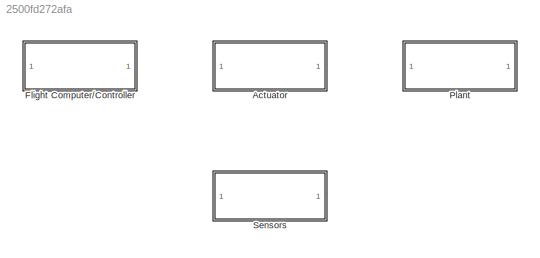
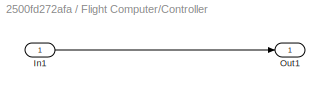
MODEL slx_2500fd272afa
KIND model
CONFIG AbsTol = auto
CONFIG EnableMultiTasking = off
CONFIG FixedStep = auto
CONFIG MaxStep = auto
CONFIG MinStep = auto
CONFIG RelTol = 1e-3
CONFIG SampleTimeConstraint = Unconstrained
CONFIG SolverName = VariableStepAuto
CONFIG StartTime = 0.0
CONFIG StopTime = 30
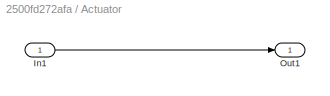
BLOCK [SubSystem] Actuator
BLOCK [Inport] Actuator/In1
BLOCK [Outport] Actuator/Out1
BLOCK [SubSystem] Flight Computer//Controller
BLOCK [Inport] Flight Computer//Controller/In1
BLOCK [Outport] Flight Computer//Controller/Out1
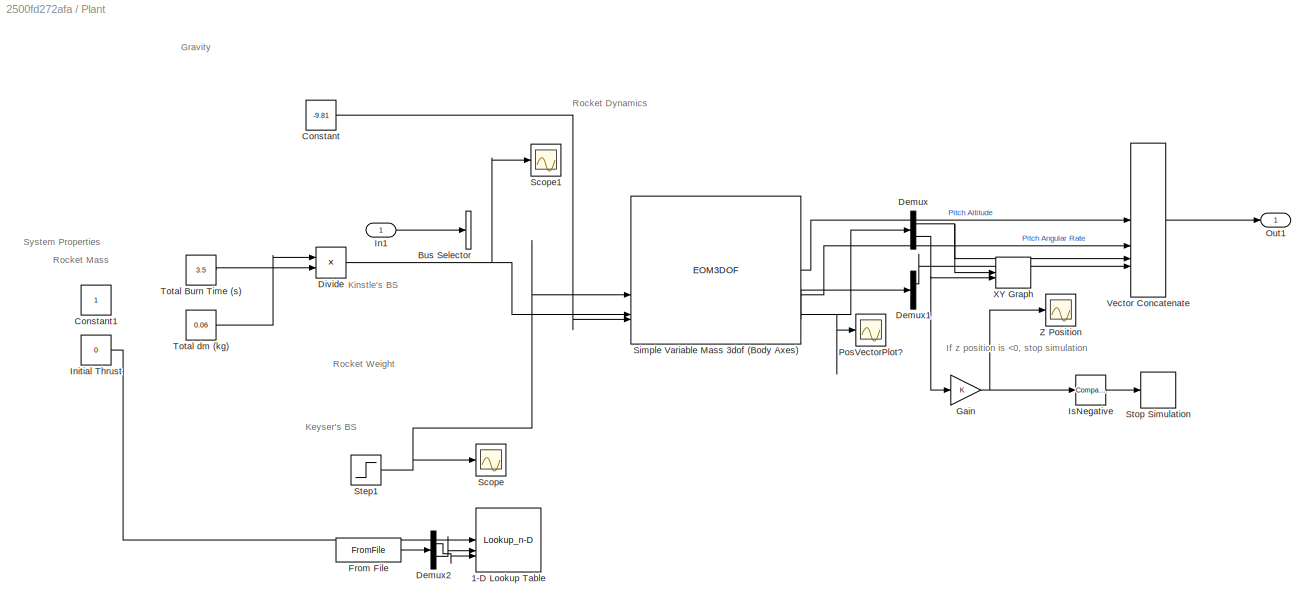
BLOCK [SubSystem] Plant
BLOCK [Lookup_n-D] Plant/1-D Lookup Table
  BreakpointsForDimension1 = [-5:5]
  BreakpointsForDimension1Source = Input port
  InputPortMap = u0,p221,p5
  InternalRulePriority = Speed
  NumberOfTableDimensions = 1
  RndMeth = Simplest
  Table = tanh([-5:5])
  TableSource = Input port
BLOCK [BusSelector] Plant/Bus Selector
  Commented = on
  OutputSignals = signal1,signal2
BLOCK [Constant] Plant/Constant
  Value = -9.81
BLOCK [Constant] Plant/Constant1
BLOCK [Demux] Plant/Demux
  Outputs = 2
BLOCK [Demux] Plant/Demux1
  Outputs = 2
BLOCK [Demux] Plant/Demux2
  Outputs = 2
BLOCK [Product] Plant/Divide
  Inputs = */
  OutDataTypeStr = double
BLOCK [FromFile] Plant/From File
  FileName = F15_thrust.mat
  SampleTime = 0
BLOCK [Gain] Plant/Gain
BLOCK [Inport] Plant/In1
BLOCK [Constant] Plant/Initial Thrust
  Value = 0
BLOCK [Reference] Plant/IsNegative  REF=simulink/Logic and Bit
Operations/Compare
To Zero
  LibrarySourceBlock = simulink/Quick Insert/Logic and Bit\nOperations/IsNegative
  SourceBlock = simulink/Logic and Bit\nOperations/Compare\nTo Zero
  SourceType = Compare To Zero
BLOCK [Outport] Plant/Out1
BLOCK [Scope] Plant/PosVectorPlot?
  Floating = off
  NumInputPorts = 1
  ScopeSpecificationString = Simulink.scopes.TimeScopeBlockCfg('CurrentConfiguration', extmgr.ConfigurationSet(extmgr.Configuration('Core','General UI',true),extmgr.Configuration('Core','Source UI',true),extmgr.Configuration('Sources','WiredSimulink',true,'DataLoggingVariableName','ScopeData1'),extmgr.Configuration('Visuals','Time Domain',true,'SerializedDisplays',{struct('MinYLimReal','177.43815','MaxYLimReal','193.29129','Y...<+1647ch>
BLOCK [Scope] Plant/Scope
  Floating = off
  NumInputPorts = 1
  ScopeSpecificationString = Simulink.scopes.TimeScopeBlockCfg('CurrentConfiguration', extmgr.ConfigurationSet(extmgr.Configuration('Core','General UI',true),extmgr.Configuration('Core','Source UI',true),extmgr.Configuration('Sources','WiredSimulink',true),extmgr.Configuration('Visuals','Time Domain',true,'SerializedDisplays',{struct('MinYLimReal','-2.25','MaxYLimReal','20.25','YLabelReal','','MinYLimMag','0.00000','MaxYLimMa...<+1442ch>
BLOCK [Scope] Plant/Scope1
  Floating = off
  NumInputPorts = 1
  ScopeSpecificationString = Simulink.scopes.TimeScopeBlockCfg('CurrentConfiguration', extmgr.ConfigurationSet(extmgr.Configuration('Core','General UI',true),extmgr.Configuration('Core','Source UI',true),extmgr.Configuration('Sources','WiredSimulink',true,'DataLoggingVariableName','ScopeData1'),extmgr.Configuration('Visuals','Time Domain',true,'SerializedDisplays',{struct('MinYLimReal','0.00714','MaxYLimReal','0.02714','YLabe...<+1555ch>
BLOCK [EOM3DOF] Plant/Simple Variable Mass 3dof (Body Axes)
  g_in = External
  mtype = Simple Variable
BLOCK [Step] Plant/Step1
  After = 0
  Before = 18
  SampleTime = 0
  Time = 5
BLOCK [Stop] Plant/Stop Simulation
BLOCK [Constant] Plant/Total Burn Time (s)
  Value = 3.5
BLOCK [Constant] Plant/Total dm (kg)
  Value = 0.06
BLOCK [Concatenate] Plant/Vector Concatenate
  NumInputs = 5
BLOCK [Record] Plant/XY Graph
  CompatibilityTag = XY
  FileSettingsInternal = {"entries":[{"content":{"excelSettings":{"content":{},"type":"Streamout.ExcelSettings"}},"type":"Streamout.FileSettingStorage","uuid":""}],"packageUris":["http:\/\/schema.mathworks.com\/mf0\/streamout_blocks\/R2020a"],"version":"1.0"}
  Layout = [1 1]
  SignalsInternal = {"entries":[{"content":{"signals":[{"content":{"blockPath":[],"dimensions":[1],"domain":"","lineColor":"#a2142f","plots":[ 1 ],"port":1,"sid":[""],"signalID":1,"signalName":"Demux:1"},"type":"RecordBlkView.Signal","uuid":""},{"content":{"blockPath":[],"dimensions":[1],"domain":"","lineColor":"#139fff","plots":[ 1 ],"port":2,"sid":[""],"signalID":2,"signalName":"Demux:2"},"type":"RecordBlkView.Sign...<+160ch>
  VisualizationBindings = {"xyplotplugin":{"info":[{"series":[{"bindingParametersList":[{"parameter":"X-Axis","signalID":1,"signalName":"Demux:1"},{"parameter":"Y-Axis","signalID":2,"signalName":"Demux:2"}],"seriesID":0}],"subplotID":1}]}}
BLOCK [Scope] Plant/Z Position
  Floating = off
  NumInputPorts = 1
  ScopeSpecificationString = Simulink.scopes.TimeScopeBlockCfg('CurrentConfiguration', extmgr.ConfigurationSet(extmgr.Configuration('Core','General UI',true),extmgr.Configuration('Core','Source UI',true),extmgr.Configuration('Sources','WiredSimulink',true,'DataLoggingVariableName','ScopeData1'),extmgr.Configuration('Visuals','Time Domain',true,'SerializedDisplays',{struct('MinYLimReal','177.43815','MaxYLimReal','193.29129','Y...<+1566ch>
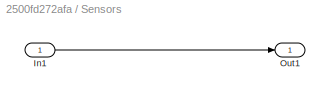
BLOCK [SubSystem] Sensors
BLOCK [Inport] Sensors/In1
BLOCK [Outport] Sensors/Out1
ANNOTATION Plant: Gravity
ANNOTATION Plant: If z position is <0, stop simulation
ANNOTATION Plant: Keyser's BS
ANNOTATION Plant: Kinstle's BS
ANNOTATION Plant: Rocket Dynamics
ANNOTATION Plant: Rocket Mass
ANNOTATION Plant: Rocket Weight
ANNOTATION Plant: System Properties
LINE Actuator/In1:1 -> Actuator/Out1:1
LINE Flight Computer//Controller/In1:1 -> Flight Computer//Controller/Out1:1
LINE Plant/Constant:1 -> Plant/Simple Variable Mass 3dof (Body Axes):5
LINE Plant/Demux1:1 -> Plant/Vector Concatenate:4
LINE Plant/Demux2:1 -> Plant/1-D Lookup Table:3
LINE Plant/Demux2:2 -> Plant/1-D Lookup Table:2
NET Plant/Demux:1 -> Plant/Vector Concatenate:3, Plant/XY Graph:1
NET Plant/Demux:2 -> Plant/Gain:1, Plant/XY Graph:2
NET Plant/Divide:1 -> Plant/Scope1:1, Plant/Simple Variable Mass 3dof (Body Axes):4
LINE Plant/From File:1 -> Plant/Demux2:1
NET Plant/Gain:1 -> Plant/IsNegative:1, Plant/Z Position:1
LINE Plant/In1:1 -> Plant/Bus Selector:1
LINE Plant/Initial Thrust:1 -> Plant/1-D Lookup Table:1
LINE Plant/IsNegative:1 -> Plant/Stop Simulation:1
LINE Plant/Simple Variable Mass 3dof (Body Axes):1 -> Plant/Vector Concatenate:1
LINE Plant/Simple Variable Mass 3dof (Body Axes):2 -> Plant/Vector Concatenate:2
NET Plant/Simple Variable Mass 3dof (Body Axes):4 -> Plant/Demux:1, Plant/PosVectorPlot?:1
LINE Plant/Simple Variable Mass 3dof (Body Axes):5 -> Plant/Demux1:1
NET Plant/Step1:1 -> Plant/Scope:1, Plant/Simple Variable Mass 3dof (Body Axes):2
LINE Plant/Total Burn Time (s):1 -> Plant/Divide:2
LINE Plant/Total dm (kg):1 -> Plant/Divide:1
LINE Plant/Vector Concatenate:1 -> Plant/Out1:1
LINE Sensors/In1:1 -> Sensors/Out1:1
note: NET lines group one-source signal fan-out (src -> all destinations, sorted); 1:1 wires keep LINE
